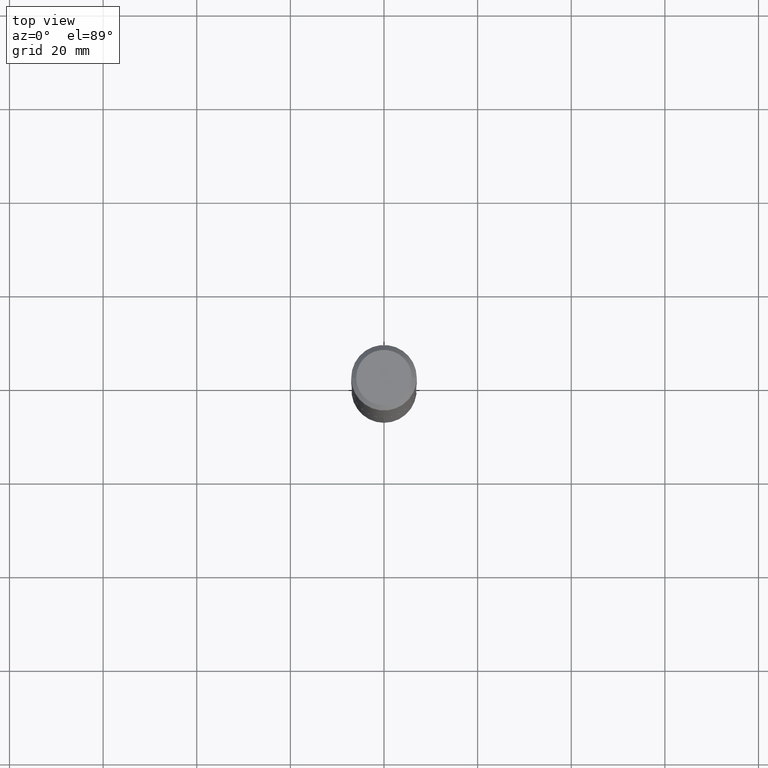
[diagram: clean part render]
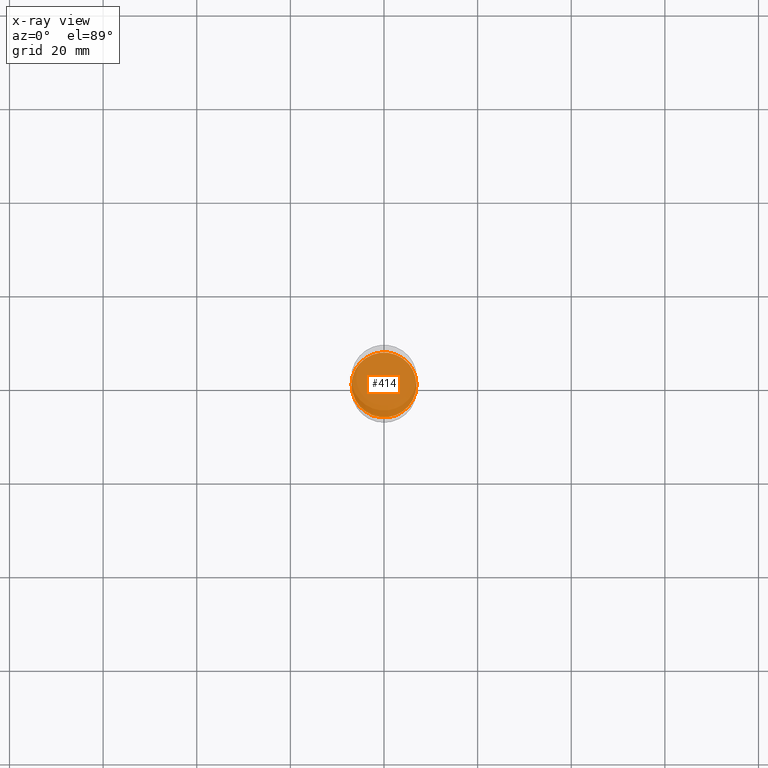
[diagram: x-ray — body ghosted, one internal face saturated and labeled with its STEP entity id]
A machine part, top view, then the same camera in x-ray: the body is ghosted and one INTERNAL B-rep face — a face not visible from any outside direction — is saturated and labeled: STEP entity #414.
In plain terms, the highlighted planar face has unit normal (-0, 0, 1).
Its self-contained STEP definition (entity closure, byte-faithful):
#4 = CIRCLE ( 'NONE', #353, 0.2729500000000000259 ) ;
#10 = CIRCLE ( 'NONE', #187, 0.2729500000000000259 ) ;
#23 = DIRECTION ( 'NONE',  ( -2.445468806185136597E-29, 3.491481338843145583E-15, 1.000000000000000000 ) ) ;
#35 = DIRECTION ( 'NONE',  ( -2.445468806185136597E-29, 3.491481338843145583E-15, 1.000000000000000000 ) ) ;
#102 = EDGE_CURVE ( 'NONE', #149, #117, #10, .T. ) ;
#117 = VERTEX_POINT ( 'NONE', #208 ) ;
#149 = VERTEX_POINT ( 'NONE', #253 ) ;
#178 = CARTESIAN_POINT ( 'NONE',  ( 8.714183543960117066E-29, -1.244154460283366704E-14, -3.563400000000000567 ) ) ;
#187 = AXIS2_PLACEMENT_3D ( 'NONE', #454, #23, #251 ) ;
#193 = CARTESIAN_POINT ( 'NONE',  ( 3.733284674374409565E-29, -1.957447527923830843E-14, -3.563400000000000567 ) ) ;
#196 = EDGE_CURVE ( 'NONE', #117, #149, #4, .T. ) ;
#208 = CARTESIAN_POINT ( 'NONE',  ( 0.2729500000000000259, -1.434754426570813484E-14, -3.563400000000000567 ) ) ;
#234 = DIRECTION ( 'NONE',  ( -2.438088387897960049E-29, 3.491481338843145188E-15, 1.000000000000000000 ) ) ;
#237 = ORIENTED_EDGE ( 'NONE', *, *, #196, .F. ) ;
#251 = DIRECTION ( 'NONE',  ( 1.000000000000000000, -6.982962677686266711E-15, 0.000000000000000000 ) ) ;
#253 = CARTESIAN_POINT ( 'NONE',  ( -0.2729500000000000259, -1.049946897840236141E-14, -3.563400000000000567 ) ) ;
#294 = DIRECTION ( 'NONE',  ( 1.000000000000000000, -6.982962677686266711E-15, 0.000000000000000000 ) ) ;
#336 = ORIENTED_EDGE ( 'NONE', *, *, #102, .F. ) ;
#341 = PLANE ( 'NONE',  #390 ) ;
#353 = AXIS2_PLACEMENT_3D ( 'NONE', #178, #35, #294 ) ;
#379 = FACE_OUTER_BOUND ( 'NONE', #405, .T. ) ;
#390 = AXIS2_PLACEMENT_3D ( 'NONE', #193, #234, #445 ) ;
#405 = EDGE_LOOP ( 'NONE', ( #237, #336 ) ) ;
#414 = ADVANCED_FACE ( 'NONE', ( #379 ), #341, .F. ) ;
#445 = DIRECTION ( 'NONE',  ( 1.000000000000000000, -6.982962677686265922E-15, 4.876176775795935793E-29 ) ) ;
#454 = CARTESIAN_POINT ( 'NONE',  ( 8.714183543960117066E-29, -1.244154460283366704E-14, -3.563400000000000567 ) ) ;